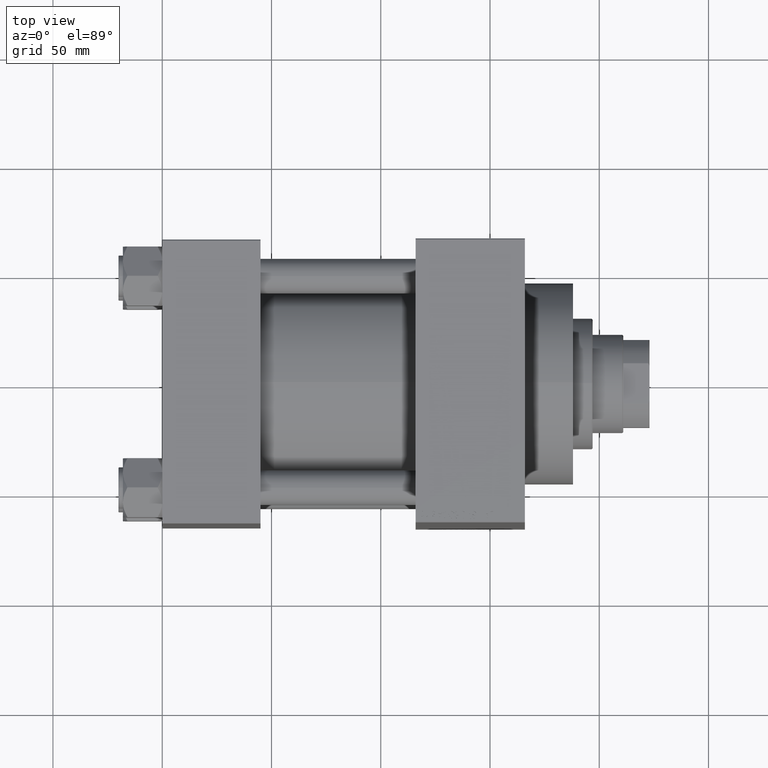
[diagram: clean part render]
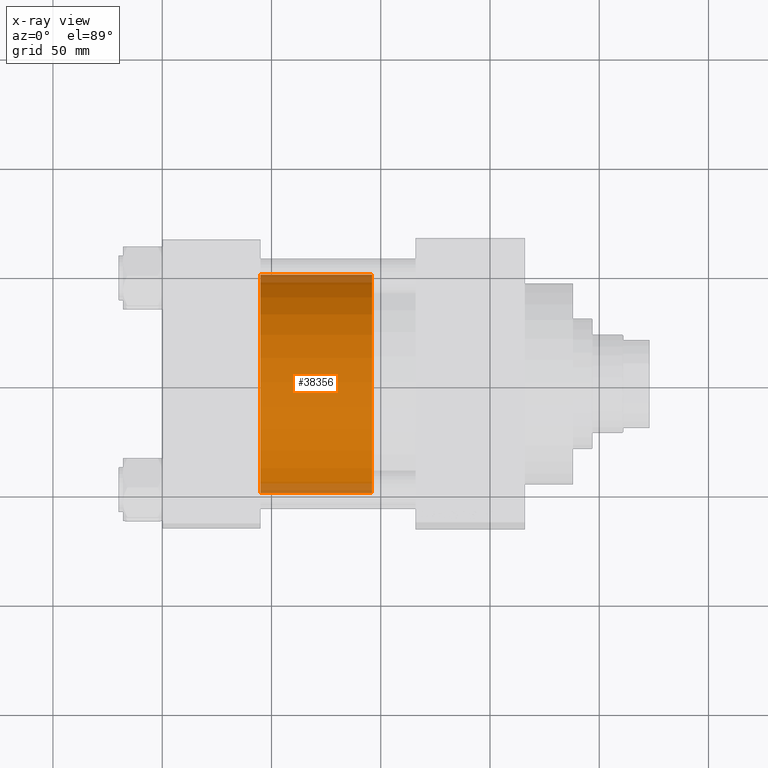
[diagram: x-ray — body ghosted, one internal face saturated and labeled with its STEP entity id]
A machine part, top view, then the same camera in x-ray: the body is ghosted and one INTERNAL B-rep face — a face not visible from any outside direction — is saturated and labeled: STEP entity #38356.
In plain terms, the highlighted cylindrical surface (partial cylindrical patch) has radius 50 mm, axis along (-1, 0, 0).
Its self-contained STEP definition (entity closure, byte-faithful):
#6 = DIRECTION ( 'NONE',  ( -0.000000000000000000, -0.000000000000000000, -1.000000000000000000 ) ) ;
#568 = FACE_OUTER_BOUND ( 'NONE', #29645, .T. ) ;
#2058 = ORIENTED_EDGE ( 'NONE', *, *, #16001, .T. ) ;
#3044 = VERTEX_POINT ( 'NONE', #38230 ) ;
#7719 = CIRCLE ( 'NONE', #17749, 50.00000000000000000 ) ;
#8480 = CARTESIAN_POINT ( 'NONE',  ( 0.000000000000000000, 0.000000000000000000, 51.00000000000000000 ) ) ;
#8929 = EDGE_CURVE ( 'NONE', #13652, #16651, #24602, .T. ) ;
#9708 = DIRECTION ( 'NONE',  ( 1.000000000000000000, 0.000000000000000000, 0.000000000000000000 ) ) ;
#9944 = DIRECTION ( 'NONE',  ( 0.000000000000000000, 0.000000000000000000, 1.000000000000000000 ) ) ;
#10227 = CIRCLE ( 'NONE', #24856, 50.00000000000000000 ) ;
#11094 = ORIENTED_EDGE ( 'NONE', *, *, #21300, .F. ) ;
#13652 = VERTEX_POINT ( 'NONE', #39822 ) ;
#15272 = CYLINDRICAL_SURFACE ( 'NONE', #42780, 50.00000000000000000 ) ;
#16001 = EDGE_CURVE ( 'NONE', #3044, #17561, #17863, .T. ) ;
#16651 = VERTEX_POINT ( 'NONE', #44233 ) ;
#17561 = VERTEX_POINT ( 'NONE', #37497 ) ;
#17616 = CARTESIAN_POINT ( 'NONE',  ( -50.00000000000000000, 0.000000000000000000, 51.00000000000000000 ) ) ;
#17749 = AXIS2_PLACEMENT_3D ( 'NONE', #8480, #26554, #41047 ) ;
#17863 = LINE ( 'NONE', #17616, #43075 ) ;
#21300 = EDGE_CURVE ( 'NONE', #3044, #13652, #7719, .T. ) ;
#24602 = LINE ( 'NONE', #34505, #35276 ) ;
#24856 = AXIS2_PLACEMENT_3D ( 'NONE', #42986, #9944, #9708 ) ;
#26554 = DIRECTION ( 'NONE',  ( 0.000000000000000000, 0.000000000000000000, 1.000000000000000000 ) ) ;
#28629 = EDGE_CURVE ( 'NONE', #17561, #16651, #10227, .T. ) ;
#29645 = EDGE_LOOP ( 'NONE', ( #47213, #11094, #2058, #33217 ) ) ;
#29971 = CARTESIAN_POINT ( 'NONE',  ( 0.000000000000000000, 0.000000000000000000, 51.00000000000000000 ) ) ;
#31607 = DIRECTION ( 'NONE',  ( -0.000000000000000000, -0.000000000000000000, -1.000000000000000000 ) ) ;
#33217 = ORIENTED_EDGE ( 'NONE', *, *, #28629, .T. ) ;
#34505 = CARTESIAN_POINT ( 'NONE',  ( 50.00000000000000000, 6.123233995736766085E-15, 51.00000000000000000 ) ) ;
#35276 = VECTOR ( 'NONE', #31607, 1000.000000000000000 ) ;
#37497 = CARTESIAN_POINT ( 'NONE',  ( -50.00000000000000000, 0.000000000000000000, 0.000000000000000000 ) ) ;
#38230 = CARTESIAN_POINT ( 'NONE',  ( -50.00000000000000000, 0.000000000000000000, 51.00000000000000000 ) ) ;
#38356 = ADVANCED_FACE ( 'NONE', ( #568 ), #15272, .T. ) ;
#39822 = CARTESIAN_POINT ( 'NONE',  ( 50.00000000000000000, 6.123233995736766085E-15, 51.00000000000000000 ) ) ;
#41047 = DIRECTION ( 'NONE',  ( 1.000000000000000000, 0.000000000000000000, 0.000000000000000000 ) ) ;
#42780 = AXIS2_PLACEMENT_3D ( 'NONE', #29971, #44672, #44907 ) ;
#42986 = CARTESIAN_POINT ( 'NONE',  ( 0.000000000000000000, 0.000000000000000000, 0.000000000000000000 ) ) ;
#43075 = VECTOR ( 'NONE', #6, 1000.000000000000000 ) ;
#44233 = CARTESIAN_POINT ( 'NONE',  ( 50.00000000000000000, 6.123233995736766085E-15, 0.000000000000000000 ) ) ;
#44672 = DIRECTION ( 'NONE',  ( -0.000000000000000000, -0.000000000000000000, -1.000000000000000000 ) ) ;
#44907 = DIRECTION ( 'NONE',  ( -1.000000000000000000, 0.000000000000000000, 0.000000000000000000 ) ) ;
#47213 = ORIENTED_EDGE ( 'NONE', *, *, #8929, .F. ) ;